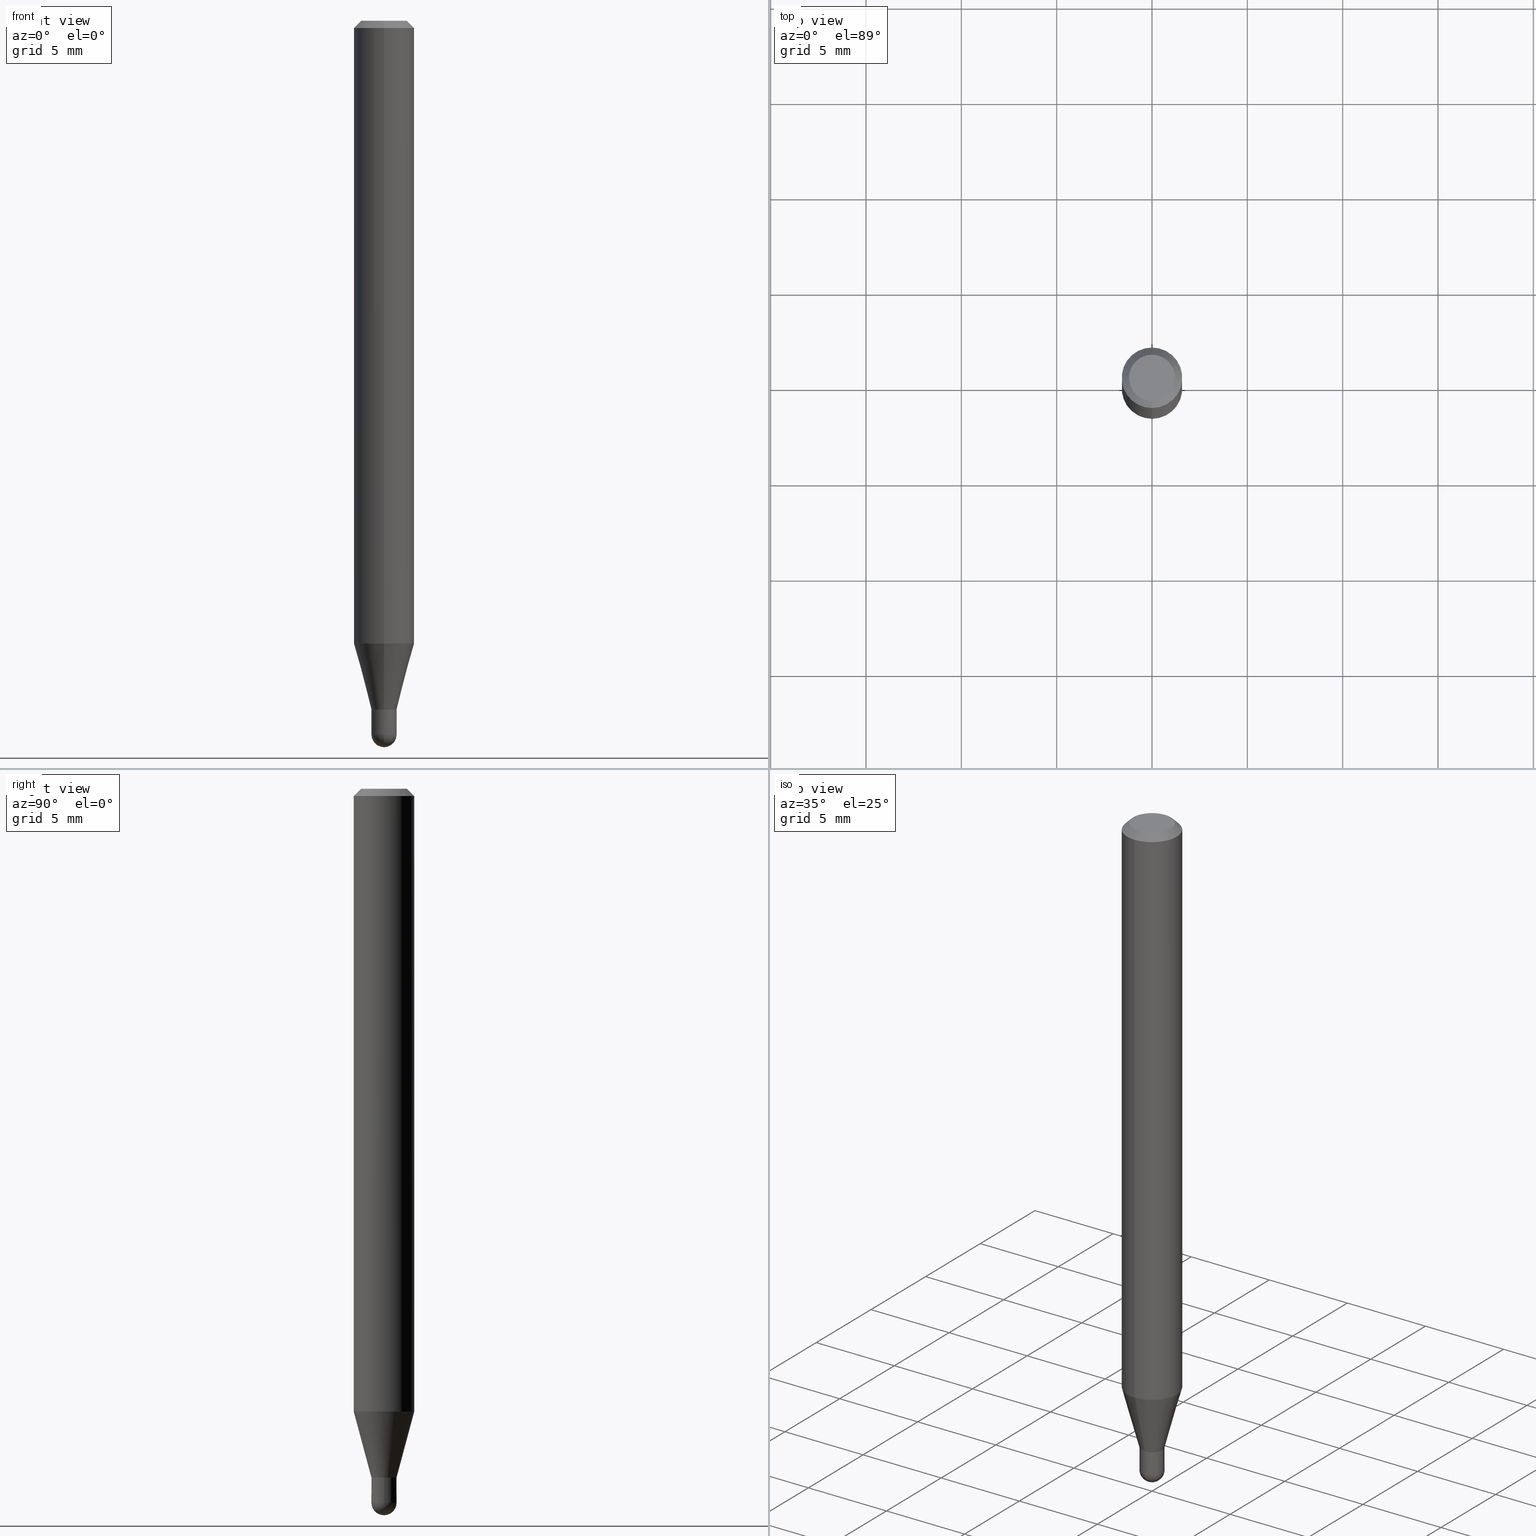
[diagram: canonical four-view strip — front | top / right | iso, engineering-drawing reading convention]
A machine part, canonical four-view strip (front | top / right | iso — engineering-drawing reading convention). The complete STEP part file that produces these views, byte-faithful:
ISO-10303-21;
HEADER;
FILE_DESCRIPTION (( 'STEP AP203' ),
    '1' );
FILE_NAME ('01409.STEP',
    '2024-03-07T20:29:47',
    ( '' ),
    ( '' ),
    'SwSTEP 2.0',
    'SolidWorks 2023',
    '' );
FILE_SCHEMA (( 'CONFIG_CONTROL_DESIGN' ));
ENDSEC;

DATA;
#1 = AXIS2_PLACEMENT_3D ( 'NONE', #109, #228, #187 ) ;
#2 = DIRECTION ( 'NONE',  ( 4.937700262164548042E-15, 0.7071067811865451302, -0.7071067811865499042 ) ) ;
#3 = CARTESIAN_POINT ( 'NONE',  ( -4.364351673553603615E-16, -0.06250000000000451028, -1.285780145523740092 ) ) ;
#4 = CARTESIAN_POINT ( 'NONE',  ( 3.477436416608549682E-29, -4.964915428312709609E-15, -1.421999999999999931 ) ) ;
#5 = LINE ( 'NONE', #329, #183 ) ;
#6 = PERSON ( 'UNSPECIFIED', 'UNSPECIFIED', 'UNSPECIFIED', ('UNSPECIFIED'), ('UNSPECIFIED'), ('UNSPECIFIED') ) ;
#7 = COORDINATED_UNIVERSAL_TIME_OFFSET ( 5, 0, .BEHIND. ) ;
#8 = DIRECTION ( 'NONE',  ( 1.000000000000000000, -6.982962677686257244E-15, 0.000000000000000000 ) ) ;
#9 = VERTEX_POINT ( 'NONE', #3 ) ;
#10 = ADVANCED_FACE ( 'NONE', ( #45 ), #307, .T. ) ;
#11 = AXIS2_PLACEMENT_3D ( 'NONE', #235, #67, #223 ) ;
#12 = EDGE_LOOP ( 'NONE', ( #434, #406, #122, #397 ) ) ;
#13 = COORDINATED_UNIVERSAL_TIME_OFFSET ( 5, 0, .BEHIND. ) ;
#14 = CARTESIAN_POINT ( 'NONE',  ( 1.815570296198776877E-16, 0.02599999999999503403, -1.421999999999999931 ) ) ;
#15 = EDGE_CURVE ( 'NONE', #252, #77, #299, .T. ) ;
#16 = CARTESIAN_POINT ( 'NONE',  ( -1.815570296198075284E-16, -0.02600000000000488032, -1.422000000000000375 ) ) ;
#17 = EDGE_CURVE ( 'NONE', #28, #436, #219, .T. ) ;
#18 = AXIS2_PLACEMENT_3D ( 'NONE', #194, #84, #412 ) ;
#19 = DIRECTION ( 'NONE',  ( -2.445468806185136597E-29, 3.491481338843145583E-15, 1.000000000000000000 ) ) ;
#20 = CC_DESIGN_PERSON_AND_ORGANIZATION_ASSIGNMENT ( #93, #214, ( #497 ) ) ;
#21 = FACE_OUTER_BOUND ( 'NONE', #393, .T. ) ;
#22 = EDGE_CURVE ( 'NONE', #441, #186, #246, .T. ) ;
#23 = CARTESIAN_POINT ( 'NONE',  ( 2.166514312515301841E-46, -3.093244288951834296E-32, -8.859352072356121388E-18 ) ) ;
#24 = AXIS2_PLACEMENT_3D ( 'NONE', #238, #371, #204 ) ;
#25 = ORIENTED_EDGE ( 'NONE', *, *, #498, .F. ) ;
#26 = DIRECTION ( 'NONE',  ( -6.982962677686265133E-15, -1.000000000000000000, 0.000000000000000000 ) ) ;
#27 = ORIENTED_EDGE ( 'NONE', *, *, #266, .T. ) ;
#28 = VERTEX_POINT ( 'NONE', #208 ) ;
#29 = DIRECTION ( 'NONE',  ( -2.445454582706433813E-29, 3.491501707674197965E-15, 1.000000000000000000 ) ) ;
#30 = ORIENTED_EDGE ( 'NONE', *, *, #216, .T. ) ;
#31 = VECTOR ( 'NONE', #29, 39.37007874015748143 ) ;
#32 = MANIFOLD_SOLID_BREP ( 'Body-Move/Copy2[1]', #277 ) ;
#33 = LENGTH_MEASURE_WITH_UNIT ( LENGTH_MEASURE( 0.02539999999999999897 ), #127 );
#34 = ORIENTED_EDGE ( 'NONE', *, *, #139, .T. ) ;
#35 = ORIENTED_EDGE ( 'NONE', *, *, #15, .F. ) ;
#36 = EDGE_CURVE ( 'NONE', #162, #475, #404, .T. ) ;
#37 = DIRECTION ( 'NONE',  ( -6.982962677686265922E-15, -1.000000000000000000, 0.000000000000000000 ) ) ;
#38 = ORIENTED_EDGE ( 'NONE', *, *, #487, .F. ) ;
#39 = AXIS2_PLACEMENT_3D ( 'NONE', #117, #481, #450 ) ;
#40 = CIRCLE ( 'NONE', #57, 0.04749999999999999362 ) ;
#41 = FACE_OUTER_BOUND ( 'NONE', #312, .T. ) ;
#42 = DIRECTION ( 'NONE',  ( -2.445454582706434094E-29, 3.491501707674197965E-15, 1.000000000000000000 ) ) ;
#43 = PLANE ( 'NONE',  #191 ) ;
#44 = ADVANCED_FACE ( 'NONE', ( #325 ), #445, .F. ) ;
#45 = FACE_OUTER_BOUND ( 'NONE', #195, .T. ) ;
#46 = MANIFOLD_SOLID_BREP ( 'Body-Move/Copy2[2]', #385 ) ;
#47 = COORDINATED_UNIVERSAL_TIME_OFFSET ( 5, 0, .BEHIND. ) ;
#48 = VERTEX_POINT ( 'NONE', #372 ) ;
#49 = AXIS2_PLACEMENT_3D ( 'NONE', #468, #189, #231 ) ;
#50 = LOCAL_TIME ( 15, 29, 47.00000000000000000, #338 ) ;
#51 = PERSON_AND_ORGANIZATION ( #6, #376 ) ;
#52 = DIRECTION ( 'NONE',  ( -6.982962677686265922E-15, -1.000000000000000000, 3.491501707674197571E-15 ) ) ;
#53 = FACE_OUTER_BOUND ( 'NONE', #149, .T. ) ;
#54 =( NAMED_UNIT ( * ) SI_UNIT ( $, .STERADIAN. ) SOLID_ANGLE_UNIT ( ) );
#55 = DIRECTION ( 'NONE',  ( -4.937700262164674260E-15, -0.7071067811865632269, 0.7071067811865319186 ) ) ;
#56 = APPROVAL_ROLE ( '' ) ;
#57 = AXIS2_PLACEMENT_3D ( 'NONE', #23, #142, #107 ) ;
#58 = SECURITY_CLASSIFICATION ( '', '', #169 ) ;
#59 = DIRECTION ( 'NONE',  ( -6.982962677686265133E-15, -1.000000000000000000, 0.000000000000000000 ) ) ;
#60 = FACE_OUTER_BOUND ( 'NONE', #74, .T. ) ;
#61 = EDGE_CURVE ( 'NONE', #48, #475, #5, .T. ) ;
#62 = VERTEX_POINT ( 'NONE', #181 ) ;
#63 = APPLICATION_CONTEXT ( 'configuration controlled 3d designs of mechanical parts and assemblies' ) ;
#64 = CARTESIAN_POINT ( 'NONE',  ( 3.664868060749905896E-29, -5.241998130781394261E-15, -1.500000000000000444 ) ) ;
#65 = AXIS2_PLACEMENT_3D ( 'NONE', #373, #247, #328 ) ;
#66 = ADVANCED_FACE ( 'NONE', ( #21 ), #462, .T. ) ;
#67 = DIRECTION ( 'NONE',  ( -2.445468806185136597E-29, 3.491481338843145583E-15, 1.000000000000000000 ) ) ;
#68 = ORIENTED_EDGE ( 'NONE', *, *, #330, .T. ) ;
#69 = ORIENTED_EDGE ( 'NONE', *, *, #211, .T. ) ;
#70 = AXIS2_PLACEMENT_3D ( 'NONE', #410, #42, #205 ) ;
#71 = CIRCLE ( 'NONE', #24, 0.04749999999999999362 ) ;
#72 = ORIENTED_EDGE ( 'NONE', *, *, #83, .F. ) ;
#73 = LINE ( 'NONE', #444, #313 ) ;
#74 = EDGE_LOOP ( 'NONE', ( #472, #479, #358, #113 ) ) ;
#75 = APPROVAL_STATUS ( 'not_yet_approved' ) ;
#76 = DIRECTION ( 'NONE',  ( -6.982962677686265922E-15, -1.000000000000000000, 3.491501707674197571E-15 ) ) ;
#77 = VERTEX_POINT ( 'NONE', #306 ) ;
#78 = PRODUCT_DEFINITION ( 'UNKNOWN', '', #497, #233 ) ;
#79 = DIRECTION ( 'NONE',  ( -2.445454582706434094E-29, 3.491501707674197965E-15, 1.000000000000000000 ) ) ;
#80 = DIRECTION ( 'NONE',  ( -2.445468806185136597E-29, 3.491481338843145583E-15, 1.000000000000000000 ) ) ;
#81 = CIRCLE ( 'NONE', #386, 0.02600000000000000228 ) ;
#82 = LOCAL_TIME ( 15, 29, 47.00000000000000000, #47 ) ;
#83 = EDGE_CURVE ( 'NONE', #188, #436, #213, .T. ) ;
#84 = DIRECTION ( 'NONE',  ( -2.445454582706434094E-29, 3.491501707674197965E-15, 1.000000000000000000 ) ) ;
#85 = EDGE_LOOP ( 'NONE', ( #197, #30, #447, #413 ) ) ;
#86 = DIRECTION ( 'NONE',  ( 1.839019923739648830E-15, 0.2588190451025317862, 0.9659258262890653146 ) ) ;
#87 = ORIENTED_EDGE ( 'NONE', *, *, #89, .F. ) ;
#88 = APPROVAL_STATUS ( 'not_yet_approved' ) ;
#89 = EDGE_CURVE ( 'NONE', #162, #441, #433, .T. ) ;
#90 = CARTESIAN_POINT ( 'NONE',  ( 0.000000000000000000, 0.000000000000000000, 0.000000000000000000 ) ) ;
#91 = AXIS2_PLACEMENT_3D ( 'NONE', #421, #140, #52 ) ;
#92 = AXIS2_PLACEMENT_3D ( 'NONE', #121, #124, #326 ) ;
#93 = PERSON_AND_ORGANIZATION ( #6, #376 ) ;
#94 = DIRECTION ( 'NONE',  ( 6.982962677686265922E-15, 1.000000000000000000, -3.491501707674197965E-15 ) ) ;
#95 = DATE_TIME_ROLE ( 'creation_date' ) ;
#96 = DIRECTION ( 'NONE',  ( 1.000000000000000000, -6.982962677686265133E-15, 4.883557194083112901E-29 ) ) ;
#97 = PERSON_AND_ORGANIZATION ( #6, #376 ) ;
#98 = DIRECTION ( 'NONE',  ( -2.445454582706434094E-29, 3.491501707674197965E-15, 1.000000000000000000 ) ) ;
#99 = ADVANCED_FACE ( 'NONE', ( #130 ), #387, .F. ) ;
#100 = CONICAL_SURFACE ( 'NONE', #455, 0.02599999999999991554, 0.2617993877991573459 ) ;
#101 = DIRECTION ( 'NONE',  ( -6.982962677686265133E-15, -1.000000000000000000, 0.000000000000000000 ) ) ;
#102 = CARTESIAN_POINT ( 'NONE',  ( 3.668181874059653067E-31, -5.237252561511299906E-17, -0.01500000000000000812 ) ) ;
#103 = EDGE_LOOP ( 'NONE', ( #512, #229, #285, #72, #370 ) ) ;
#104 = DIRECTION ( 'NONE',  ( 1.000000000000000000, -6.982962677686257244E-15, 0.000000000000000000 ) ) ;
#105 = ORIENTED_EDGE ( 'NONE', *, *, #216, .F. ) ;
#106 = CONICAL_SURFACE ( 'NONE', #407, 0.02549999999999999489, 0.7853981633974739252 ) ;
#107 = DIRECTION ( 'NONE',  ( -6.982962677686266711E-15, -1.000000000000000000, 3.491501707674198359E-15 ) ) ;
#108 = ORIENTED_EDGE ( 'NONE', *, *, #217, .T. ) ;
#109 = CARTESIAN_POINT ( 'NONE',  ( 3.604621020316892110E-29, -5.146443493454796836E-15, -1.474000000000000199 ) ) ;
#110 = EDGE_LOOP ( 'NONE', ( #431, #438 ) ) ;
#111 = APPROVAL ( #378, 'UNSPECIFIED' ) ;
#112 = FACE_OUTER_BOUND ( 'NONE', #317, .T. ) ;
#113 = ORIENTED_EDGE ( 'NONE', *, *, #253, .F. ) ;
#114 = ADVANCED_FACE ( 'NONE', ( #461 ), #423, .F. ) ;
#115 = CARTESIAN_POINT ( 'NONE',  ( 0.000000000000000000, 0.000000000000000000, 0.000000000000000000 ) ) ;
#116 = CIRCLE ( 'NONE', #184, 0.02599999999999991901 ) ;
#117 = CARTESIAN_POINT ( 'NONE',  ( 3.602397587965025364E-29, -5.149627575132580366E-15, -1.474000000000000199 ) ) ;
#118 = APPROVAL_PERSON_ORGANIZATION ( #303, #111, #56 ) ;
#119 = CYLINDRICAL_SURFACE ( 'NONE', #141, 0.06250000000000000000 ) ;
#120 = DIRECTION ( 'NONE',  ( -2.445454582706433813E-29, 3.491501707674197965E-15, 1.000000000000000000 ) ) ;
#121 = CARTESIAN_POINT ( 'NONE',  ( 3.602397587965025364E-29, -5.149627575132580366E-15, -1.474000000000000199 ) ) ;
#122 = ORIENTED_EDGE ( 'NONE', *, *, #225, .F. ) ;
#123 = ADVANCED_FACE ( 'NONE', ( #493 ), #398, .T. ) ;
#124 = DIRECTION ( 'NONE',  ( 1.000000000000000000, -6.982962677686265133E-15, 4.883557194083112901E-29 ) ) ;
#125 = VERTEX_POINT ( 'NONE', #494 ) ;
#126 = CIRCLE ( 'NONE', #11, 0.02600000000000000228 ) ;
#127 =( LENGTH_UNIT ( ) NAMED_UNIT ( * ) SI_UNIT ( $, .METRE. ) );
#128 = CARTESIAN_POINT ( 'NONE',  ( -1.815570296198423123E-16, -0.02599999999999991554, 9.077904439952885817E-17 ) ) ;
#129 = ADVANCED_FACE ( 'NONE', ( #264 ), #106, .T. ) ;
#130 = FACE_OUTER_BOUND ( 'NONE', #267, .T. ) ;
#131 = CC_DESIGN_PERSON_AND_ORGANIZATION_ASSIGNMENT ( #336, #212, ( #58 ) ) ;
#132 = COORDINATED_UNIVERSAL_TIME_OFFSET ( 5, 0, .BEHIND. ) ;
#133 = EDGE_CURVE ( 'NONE', #252, #363, #343, .T. ) ;
#134 = CARTESIAN_POINT ( 'NONE',  ( 3.602397587965025364E-29, -5.149627575132580366E-15, -1.474000000000000199 ) ) ;
#135 = CIRCLE ( 'NONE', #428, 0.02599999999999999534 ) ;
#136 = DIRECTION ( 'NONE',  ( 1.000000000000000000, -7.105427357601001070E-15, 4.926315508542082329E-29 ) ) ;
#137 = PRODUCT ( '01409', '01409', '', ( #454 ) ) ;
#138 = DIRECTION ( 'NONE',  ( -2.445454582706434094E-29, 3.491501707674197965E-15, 1.000000000000000000 ) ) ;
#139 = EDGE_CURVE ( 'NONE', #9, #415, #176, .T. ) ;
#140 = DIRECTION ( 'NONE',  ( -2.445454582706434094E-29, 3.491501707674197965E-15, 1.000000000000000000 ) ) ;
#141 = AXIS2_PLACEMENT_3D ( 'NONE', #115, #281, #76 ) ;
#142 = DIRECTION ( 'NONE',  ( -2.445454582706434094E-29, 3.491501707674197965E-15, 1.000000000000000000 ) ) ;
#143 = ADVANCED_FACE ( 'NONE', ( #60 ), #489, .T. ) ;
#144 = ORIENTED_EDGE ( 'NONE', *, *, #484, .F. ) ;
#145 = ADVANCED_FACE ( 'NONE', ( #488 ), #463, .T. ) ;
#146 = CARTESIAN_POINT ( 'NONE',  ( 4.440892098500625669E-16, 0.06250000000000000000, -2.182188567296373482E-16 ) ) ;
#147 = ORIENTED_EDGE ( 'NONE', *, *, #89, .T. ) ;
#148 = DIRECTION ( 'NONE',  ( -2.445454582706434094E-29, 3.491501707674197965E-15, 1.000000000000000000 ) ) ;
#149 = EDGE_LOOP ( 'NONE', ( #361, #87, #153, #391 ) ) ;
#150 = ORIENTED_EDGE ( 'NONE', *, *, #83, .T. ) ;
#151 = ADVANCED_FACE ( 'NONE', ( #53 ), #453, .F. ) ;
#152 = CARTESIAN_POINT ( 'NONE',  ( 1.811883976188602703E-16, 0.02549999999999503011, -1.421999999999999931 ) ) ;
#153 = ORIENTED_EDGE ( 'NONE', *, *, #36, .T. ) ;
#154 = CARTESIAN_POINT ( 'NONE',  ( 1.847411112976624507E-16, 0.02599999999999490913, -1.474000000000000199 ) ) ;
#155 = VECTOR ( 'NONE', #120, 39.37007874015748143 ) ;
#156 = CIRCLE ( 'NONE', #18, 0.02599999999999991901 ) ;
#157 = CARTESIAN_POINT ( 'NONE',  ( 3.477456642395264859E-29, -4.964886463834953365E-15, -1.421999999999999931 ) ) ;
#158 = APPLICATION_CONTEXT ( 'configuration controlled 3d designs of mechanical parts and assemblies' ) ;
#159 = LINE ( 'NONE', #405, #368 ) ;
#160 = CARTESIAN_POINT ( 'NONE',  ( 3.668181874059653067E-31, -5.237252561511299906E-17, -0.01500000000000000812 ) ) ;
#161 = LINE ( 'NONE', #279, #167 ) ;
#162 = VERTEX_POINT ( 'NONE', #16 ) ;
#163 = CARTESIAN_POINT ( 'NONE',  ( 3.604621020316892110E-29, -5.146443493454796836E-15, -1.474000000000000199 ) ) ;
#164 = ORIENTED_EDGE ( 'NONE', *, *, #380, .F. ) ;
#165 = AXIS2_PLACEMENT_3D ( 'NONE', #261, #379, #302 ) ;
#166 = AXIS2_PLACEMENT_3D ( 'NONE', #160, #209, #327 ) ;
#167 = VECTOR ( 'NONE', #482, 39.37007874015748854 ) ;
#168 = DATE_TIME_ROLE ( 'classification_date' ) ;
#169 = SECURITY_CLASSIFICATION_LEVEL ( 'unclassified' ) ;
#170 = ORIENTED_EDGE ( 'NONE', *, *, #424, .T. ) ;
#171 = APPROVAL_DATE_TIME ( #341, #111 ) ;
#172 = CARTESIAN_POINT ( 'NONE',  ( 3.477436416608549682E-29, -4.964915428312709609E-15, -1.421999999999999931 ) ) ;
#173 = CC_DESIGN_PERSON_AND_ORGANIZATION_ASSIGNMENT ( #451, #425, ( #137 ) ) ;
#174 = DIRECTION ( 'NONE',  ( 1.000000000000000000, 0.000000000000000000, 0.000000000000000000 ) ) ;
#175 = CARTESIAN_POINT ( 'NONE',  ( 3.316907271900976096E-16, 0.04749999999999999362, -1.702760071507024560E-16 ) ) ;
#176 = CIRCLE ( 'NONE', #469, 0.06250000000000000000 ) ;
#177 = CIRCLE ( 'NONE', #333, 0.02549999999999999489 ) ;
#178 = APPLICATION_PROTOCOL_DEFINITION ( 'international standard', 'config_control_design', 1994, #63 ) ;
#179 = CARTESIAN_POINT ( 'NONE',  ( 3.477456642395264859E-29, -4.964886463834953365E-15, -1.421999999999999931 ) ) ;
#180 = EDGE_CURVE ( 'NONE', #470, #193, #382, .T. ) ;
#181 = CARTESIAN_POINT ( 'NONE',  ( -0.02600000000000000228, -4.870923867347250071E-15, -1.474000000000000199 ) ) ;
#182 = DIRECTION ( 'NONE',  ( -2.445454582706434094E-29, 3.491501707674197965E-15, 1.000000000000000000 ) ) ;
#183 = VECTOR ( 'NONE', #55, 39.37007874015748143 ) ;
#184 = AXIS2_PLACEMENT_3D ( 'NONE', #314, #471, #268 ) ;
#185 = DIRECTION ( 'NONE',  ( -2.445454582706434094E-29, 3.491501707674197965E-15, 1.000000000000000000 ) ) ;
#186 = VERTEX_POINT ( 'NONE', #418 ) ;
#187 = DIRECTION ( 'NONE',  ( 1.000000000000000000, -6.982962677686257244E-15, 0.000000000000000000 ) ) ;
#188 = VERTEX_POINT ( 'NONE', #384 ) ;
#189 = DIRECTION ( 'NONE',  ( -2.445454582706434094E-29, 3.491501707674197965E-15, 1.000000000000000000 ) ) ;
#190 = ORIENTED_EDGE ( 'NONE', *, *, #180, .F. ) ;
#191 = AXIS2_PLACEMENT_3D ( 'NONE', #318, #206, #331 ) ;
#192 = EDGE_CURVE ( 'NONE', #436, #28, #135, .T. ) ;
#193 = VERTEX_POINT ( 'NONE', #304 ) ;
#194 = CARTESIAN_POINT ( 'NONE',  ( 3.476213689317196246E-29, -4.963169677458872938E-15, -1.421500000000000208 ) ) ;
#195 = EDGE_LOOP ( 'NONE', ( #190, #248, #227, #224 ) ) ;
#196 = CC_DESIGN_DATE_AND_TIME_ASSIGNMENT ( #381, #168, ( #58 ) ) ;
#197 = ORIENTED_EDGE ( 'NONE', *, *, #424, .F. ) ;
#198 = CARTESIAN_POINT ( 'NONE',  ( 4.440892098500937762E-16, 0.06249999999999548972, -1.285780145523740536 ) ) ;
#199 = AXIS2_PLACEMENT_3D ( 'NONE', #175, #491, #94 ) ;
#200 = VECTOR ( 'NONE', #287, 39.37007874015748143 ) ;
#201 = EDGE_LOOP ( 'NONE', ( #35, #510, #25, #232 ) ) ;
#202 = CC_DESIGN_APPROVAL ( #274, ( #58 ) ) ;
#203 = DATE_AND_TIME ( #286, #291 ) ;
#204 = DIRECTION ( 'NONE',  ( -6.982962677686266711E-15, -1.000000000000000000, 3.491501707674198359E-15 ) ) ;
#205 = DIRECTION ( 'NONE',  ( -6.982962677686265133E-15, -1.000000000000000000, 3.491501707674198359E-15 ) ) ;
#206 = DIRECTION ( 'NONE',  ( -2.445454582706433533E-29, 3.491501707674197965E-15, 1.000000000000000000 ) ) ;
#207 = CC_DESIGN_DATE_AND_TIME_ASSIGNMENT ( #416, #95, ( #78 ) ) ;
#208 = CARTESIAN_POINT ( 'NONE',  ( -0.02599999999999999534, -4.870923867347250071E-15, -1.421999999999999931 ) ) ;
#209 = DIRECTION ( 'NONE',  ( 2.445454582706434094E-29, -3.491501707674197965E-15, -1.000000000000000000 ) ) ;
#210 = AXIS2_PLACEMENT_3D ( 'NONE', #310, #466, #104 ) ;
#211 = EDGE_CURVE ( 'NONE', #415, #9, #399, .T. ) ;
#212 = PERSON_AND_ORGANIZATION_ROLE ( 'classification_officer' ) ;
#213 = LINE ( 'NONE', #222, #288 ) ;
#214 = PERSON_AND_ORGANIZATION_ROLE ( 'creator' ) ;
#215 = DIRECTION ( 'NONE',  ( -2.445454582706434094E-29, 3.491501707674197965E-15, 1.000000000000000000 ) ) ;
#216 = EDGE_CURVE ( 'NONE', #441, #162, #308, .T. ) ;
#217 = EDGE_CURVE ( 'NONE', #62, #77, #289, .T. ) ;
#218 = CARTESIAN_POINT ( 'NONE',  ( 3.477436416608549682E-29, -4.964915428312711187E-15, -1.422000000000000375 ) ) ;
#219 = CIRCLE ( 'NONE', #504, 0.02599999999999999534 ) ;
#220 = AXIS2_PLACEMENT_3D ( 'NONE', #414, #301, #174 ) ;
#221 = DIRECTION ( 'NONE',  ( -2.445468806185136877E-29, 3.491481338843145188E-15, 1.000000000000000000 ) ) ;
#222 = CARTESIAN_POINT ( 'NONE',  ( 0.02600000000000000228, -1.815570296198429532E-16, 1.267805961706943404E-30 ) ) ;
#223 = DIRECTION ( 'NONE',  ( 1.000000000000000000, -6.982962677686257244E-15, 0.000000000000000000 ) ) ;
#224 = ORIENTED_EDGE ( 'NONE', *, *, #323, .T. ) ;
#225 = EDGE_CURVE ( 'NONE', #475, #186, #116, .T. ) ;
#226 = VECTOR ( 'NONE', #258, 39.37007874015748143 ) ;
#227 = ORIENTED_EDGE ( 'NONE', *, *, #487, .T. ) ;
#228 = DIRECTION ( 'NONE',  ( -2.445468806185136597E-29, 3.491481338843145583E-15, 1.000000000000000000 ) ) ;
#229 = ORIENTED_EDGE ( 'NONE', *, *, #380, .T. ) ;
#230 = ADVANCED_FACE ( 'NONE', ( #311 ), #430, .T. ) ;
#231 = DIRECTION ( 'NONE',  ( -6.982962677686265922E-15, -1.000000000000000000, 4.370956789862821150E-15 ) ) ;
#232 = ORIENTED_EDGE ( 'NONE', *, *, #251, .F. ) ;
#233 = DESIGN_CONTEXT ( 'detailed design', #63, 'design' ) ;
#234 = LOCAL_TIME ( 15, 29, 47.00000000000000000, #132 ) ;
#235 = CARTESIAN_POINT ( 'NONE',  ( 3.604621020316892110E-29, -5.146443493454796836E-15, -1.474000000000000199 ) ) ;
#236 = AXIS2_PLACEMENT_3D ( 'NONE', #243, #446, #365 ) ;
#237 = EDGE_LOOP ( 'NONE', ( #147, #170, #356, #486 ) ) ;
#238 = CARTESIAN_POINT ( 'NONE',  ( 2.166514312515301841E-46, -3.093244288951834296E-32, -8.859352072356121388E-18 ) ) ;
#239 = CARTESIAN_POINT ( 'NONE',  ( 1.847411112976254235E-16, 0.02599999999999991554, -9.077904439952885817E-17 ) ) ;
#240 = CARTESIAN_POINT ( 'NONE',  ( 3.840629472727447874E-16, 0.04749999999999999362, -1.747056831868805136E-16 ) ) ;
#241 = ORIENTED_EDGE ( 'NONE', *, *, #61, .T. ) ;
#242 = PRODUCT_RELATED_PRODUCT_CATEGORY ( 'detail', '', ( #137 ) ) ;
#243 = CARTESIAN_POINT ( 'NONE',  ( 3.668181874059653067E-31, -5.237252561511299906E-17, -0.01500000000000000812 ) ) ;
#244 = AXIS2_PLACEMENT_3D ( 'NONE', #134, #96, #298 ) ;
#245 = CIRCLE ( 'NONE', #236, 0.06250000000000000000 ) ;
#246 = LINE ( 'NONE', #239, #155 ) ;
#247 = DIRECTION ( 'NONE',  ( -2.445468806185136597E-29, 3.491481338843145583E-15, 1.000000000000000000 ) ) ;
#248 = ORIENTED_EDGE ( 'NONE', *, *, #309, .F. ) ;
#249 = SHAPE_DEFINITION_REPRESENTATION ( #411, #351 ) ;
#250 = CARTESIAN_POINT ( 'NONE',  ( -3.773273898774340269E-16, -0.04749999999999999362, 1.569869790421682832E-16 ) ) ;
#251 = EDGE_CURVE ( 'NONE', #77, #188, #126, .T. ) ;
#252 = VERTEX_POINT ( 'NONE', #64 ) ;
#253 = EDGE_CURVE ( 'NONE', #363, #62, #478, .T. ) ;
#254 =( CONVERSION_BASED_UNIT ( 'INCH', #33 ) LENGTH_UNIT ( ) NAMED_UNIT ( #499 ) );
#255 = DIRECTION ( 'NONE',  ( -6.982962677686265133E-15, -1.000000000000000000, 3.491501707674198359E-15 ) ) ;
#256 = AXIS2_PLACEMENT_3D ( 'NONE', #265, #185, #502 ) ;
#257 = CALENDAR_DATE ( 2024, 7, 3 ) ;
#258 = DIRECTION ( 'NONE',  ( -4.851104656540964275E-15, -0.7071067811865500152, -0.7071067811865450192 ) ) ;
#259 = CARTESIAN_POINT ( 'NONE',  ( -4.287811248607203282E-16, -0.06250000000000005551, -0.01499999999999979128 ) ) ;
#260 = PERSON_AND_ORGANIZATION_ROLE ( 'design_supplier' ) ;
#261 = CARTESIAN_POINT ( 'NONE',  ( 3.477436416608549682E-29, -4.964915428312709609E-15, -1.421999999999999931 ) ) ;
#262 = APPROVAL_PERSON_ORGANIZATION ( #51, #395, #375 ) ;
#263 = CC_DESIGN_APPROVAL ( #395, ( #78 ) ) ;
#264 = FACE_OUTER_BOUND ( 'NONE', #12, .T. ) ;
#265 = CARTESIAN_POINT ( 'NONE',  ( 3.668181874059653067E-31, -5.237252561511299906E-17, -0.01500000000000000812 ) ) ;
#266 = EDGE_CURVE ( 'NONE', #9, #193, #437, .T. ) ;
#267 = EDGE_LOOP ( 'NONE', ( #283, #506 ) ) ;
#268 = DIRECTION ( 'NONE',  ( -6.982962677686265133E-15, -1.000000000000000000, 0.000000000000000000 ) ) ;
#269 = ORIENTED_EDGE ( 'NONE', *, *, #36, .F. ) ;
#270 = CIRCLE ( 'NONE', #256, 0.06250000000000000000 ) ;
#271 = EDGE_LOOP ( 'NONE', ( #105, #374, #272, #269 ) ) ;
#272 = ORIENTED_EDGE ( 'NONE', *, *, #484, .T. ) ;
#273 = EDGE_CURVE ( 'NONE', #319, #48, #177, .T. ) ;
#274 = APPROVAL ( #75, 'UNSPECIFIED' ) ;
#275 = DIRECTION ( 'NONE',  ( 2.445454582706434094E-29, -3.491501707674197965E-15, -1.000000000000000000 ) ) ;
#276 = ORIENTED_EDGE ( 'NONE', *, *, #251, .T. ) ;
#277 = CLOSED_SHELL ( 'NONE', ( #230, #419, #114, #143, #401 ) ) ;
#278 =( GEOMETRIC_REPRESENTATION_CONTEXT ( 3 ) GLOBAL_UNCERTAINTY_ASSIGNED_CONTEXT ( ( #439 ) ) GLOBAL_UNIT_ASSIGNED_CONTEXT ( ( #254, #420, #54 ) ) REPRESENTATION_CONTEXT ( 'NONE', 'WORKASPACE' ) );
#279 = CARTESIAN_POINT ( 'NONE',  ( -1.815570296198075284E-16, -0.02600000000000488032, -1.422000000000000375 ) ) ;
#280 = DIRECTION ( 'NONE',  ( 1.000000000000000000, -6.982962677686258822E-15, 0.000000000000000000 ) ) ;
#281 = DIRECTION ( 'NONE',  ( -2.445454582706434094E-29, 3.491501707674197965E-15, 1.000000000000000000 ) ) ;
#282 = ADVANCED_FACE ( 'NONE', ( #112 ), #359, .T. ) ;
#283 = ORIENTED_EDGE ( 'NONE', *, *, #309, .T. ) ;
#284 = LINE ( 'NONE', #369, #435 ) ;
#285 = ORIENTED_EDGE ( 'NONE', *, *, #192, .F. ) ;
#286 = CALENDAR_DATE ( 2024, 7, 3 ) ;
#287 = DIRECTION ( 'NONE',  ( 5.024295867788190974E-15, 0.7071067811865681119, 0.7071067811865270336 ) ) ;
#288 = VECTOR ( 'NONE', #221, 39.37007874015748143 ) ;
#289 = CIRCLE ( 'NONE', #210, 0.02600000000000000228 ) ;
#290 = ORIENTED_EDGE ( 'NONE', *, *, #459, .F. ) ;
#291 = LOCAL_TIME ( 15, 29, 47.00000000000000000, #7 ) ;
#292 = ADVANCED_FACE ( 'NONE', ( #350 ), #100, .T. ) ;
#293 = FACE_OUTER_BOUND ( 'NONE', #201, .T. ) ;
#294 = ORIENTED_EDGE ( 'NONE', *, *, #330, .F. ) ;
#295 = PERSON_AND_ORGANIZATION ( #6, #376 ) ;
#296 = DIRECTION ( 'NONE',  ( 2.438088387897960049E-29, -3.491481338843145188E-15, -1.000000000000000000 ) ) ;
#297 = CALENDAR_DATE ( 2024, 7, 3 ) ;
#298 = DIRECTION ( 'NONE',  ( -6.982962677686265133E-15, -1.000000000000000000, 0.000000000000000000 ) ) ;
#299 = CIRCLE ( 'NONE', #39, 0.02600000000000011330 ) ;
#300 = AXIS2_PLACEMENT_3D ( 'NONE', #4, #79, #37 ) ;
#301 = DIRECTION ( 'NONE',  ( 0.000000000000000000, 0.000000000000000000, 1.000000000000000000 ) ) ;
#302 = DIRECTION ( 'NONE',  ( -6.982962677686265922E-15, -1.000000000000000000, 0.000000000000000000 ) ) ;
#303 = PERSON_AND_ORGANIZATION ( #6, #376 ) ;
#304 = CARTESIAN_POINT ( 'NONE',  ( -4.364351673553912750E-16, -0.06250000000000005551, -0.01499999999999979128 ) ) ;
#305 = CC_DESIGN_PERSON_AND_ORGANIZATION_ASSIGNMENT ( #492, #490, ( #78 ) ) ;
#306 = CARTESIAN_POINT ( 'NONE',  ( -1.815570296198072819E-16, -0.02600000000000520298, -1.474000000000000199 ) ) ;
#307 = CONICAL_SURFACE ( 'NONE', #166, 0.06250000000000000000, 0.7853981633974483900 ) ;
#308 = CIRCLE ( 'NONE', #352, 0.02599999999999991554 ) ;
#309 = EDGE_CURVE ( 'NONE', #377, #470, #40, .T. ) ;
#310 = CARTESIAN_POINT ( 'NONE',  ( 3.604621020316892110E-29, -5.146443493454796836E-15, -1.474000000000000199 ) ) ;
#311 = FACE_OUTER_BOUND ( 'NONE', #103, .T. ) ;
#312 = EDGE_LOOP ( 'NONE', ( #467, #402 ) ) ;
#313 = VECTOR ( 'NONE', #2, 39.37007874015748143 ) ;
#314 = CARTESIAN_POINT ( 'NONE',  ( 3.476213689317196246E-29, -4.963169677458872938E-15, -1.421500000000000208 ) ) ;
#315 = ORIENTED_EDGE ( 'NONE', *, *, #349, .F. ) ;
#316 = DIRECTION ( 'NONE',  ( -6.982962677686265922E-15, -1.000000000000000000, 0.000000000000000000 ) ) ;
#317 = EDGE_LOOP ( 'NONE', ( #315, #501, #394, #38 ) ) ;
#318 = CARTESIAN_POINT ( 'NONE',  ( 3.477436416608549682E-29, -4.964915428312709609E-15, -1.421999999999999931 ) ) ;
#319 = VERTEX_POINT ( 'NONE', #465 ) ;
#320 = APPROVAL_DATE_TIME ( #203, #274 ) ;
#321 = VECTOR ( 'NONE', #366, 39.37007874015748143 ) ;
#322 = CIRCLE ( 'NONE', #300, 0.02549999999999999489 ) ;
#323 = EDGE_CURVE ( 'NONE', #125, #193, #270, .T. ) ;
#324 = DIRECTION ( 'NONE',  ( -2.445468806185136877E-29, 3.491481338843145188E-15, 1.000000000000000000 ) ) ;
#325 = FACE_OUTER_BOUND ( 'NONE', #271, .T. ) ;
#326 = DIRECTION ( 'NONE',  ( -6.982962677686265133E-15, -1.000000000000000000, 0.000000000000000000 ) ) ;
#327 = DIRECTION ( 'NONE',  ( 6.982962677686265922E-15, 1.000000000000000000, -3.483106191921935554E-15 ) ) ;
#328 = DIRECTION ( 'NONE',  ( 1.000000000000000000, -6.982962677686266711E-15, 4.876176775795935793E-29 ) ) ;
#329 = CARTESIAN_POINT ( 'NONE',  ( -1.780655482809649650E-16, -0.02550000000000495967, -1.421999999999999931 ) ) ;
#330 = EDGE_CURVE ( 'NONE', #415, #125, #354, .T. ) ;
#331 = DIRECTION ( 'NONE',  ( -6.982962677686265922E-15, -1.000000000000000000, 3.491501707674197965E-15 ) ) ;
#332 = AXIS2_PLACEMENT_3D ( 'NONE', #348, #138, #101 ) ;
#333 = AXIS2_PLACEMENT_3D ( 'NONE', #360, #182, #316 ) ;
#334 = EDGE_LOOP ( 'NONE', ( #449, #503, #241, #144 ) ) ;
#335 = CC_DESIGN_SECURITY_CLASSIFICATION ( #58, ( #497 ) ) ;
#336 = PERSON_AND_ORGANIZATION ( #6, #376 ) ;
#337 = DIRECTION ( 'NONE',  ( -6.982962677686265922E-15, -1.000000000000000000, 4.370956789862821150E-15 ) ) ;
#338 = COORDINATED_UNIVERSAL_TIME_OFFSET ( 5, 0, .BEHIND. ) ;
#339 = CARTESIAN_POINT ( 'NONE',  ( 3.602397587965025364E-29, -5.149627575132580366E-15, -1.474000000000000199 ) ) ;
#340 = CC_DESIGN_PERSON_AND_ORGANIZATION_ASSIGNMENT ( #97, #260, ( #497 ) ) ;
#341 = DATE_AND_TIME ( #297, #345 ) ;
#342 = DIRECTION ( 'NONE',  ( -6.982962677686265922E-15, -1.000000000000000000, 0.000000000000000000 ) ) ;
#343 = CIRCLE ( 'NONE', #485, 0.02600000000000011330 ) ;
#344 = VECTOR ( 'NONE', #500, 39.37007874015748143 ) ;
#345 = LOCAL_TIME ( 15, 29, 47.00000000000000000, #13 ) ;
#346 = APPROVAL_DATE_TIME ( #383, #395 ) ;
#347 = DIRECTION ( 'NONE',  ( 1.000000000000000000, -6.982962677686258822E-15, 0.000000000000000000 ) ) ;
#348 = CARTESIAN_POINT ( 'NONE',  ( 3.477436416608549682E-29, -4.964915428312711187E-15, -1.422000000000000375 ) ) ;
#349 = EDGE_CURVE ( 'NONE', #470, #377, #71, .T. ) ;
#350 = FACE_OUTER_BOUND ( 'NONE', #85, .T. ) ;
#351 = ADVANCED_BREP_SHAPE_REPRESENTATION ( '01409', ( #32, #46, #220 ), #278 ) ;
#352 = AXIS2_PLACEMENT_3D ( 'NONE', #390, #148, #357 ) ;
#353 = APPROVAL_PERSON_ORGANIZATION ( #295, #274, #367 ) ;
#354 = LINE ( 'NONE', #146, #344 ) ;
#355 = EDGE_LOOP ( 'NONE', ( #164, #108, #276, #150, #443 ) ) ;
#356 = ORIENTED_EDGE ( 'NONE', *, *, #139, .F. ) ;
#357 = DIRECTION ( 'NONE',  ( -6.982962677686265133E-15, -1.000000000000000000, 0.000000000000000000 ) ) ;
#358 = ORIENTED_EDGE ( 'NONE', *, *, #217, .F. ) ;
#359 = CONICAL_SURFACE ( 'NONE', #464, 0.06250000000000000000, 0.7853981633974483900 ) ;
#360 = CARTESIAN_POINT ( 'NONE',  ( 3.477436416608549682E-29, -4.964915428312709609E-15, -1.421999999999999931 ) ) ;
#361 = ORIENTED_EDGE ( 'NONE', *, *, #22, .F. ) ;
#362 = CARTESIAN_POINT ( 'NONE',  ( -1.815570296198081940E-16, -0.02600000000000497052, -1.421500000000000208 ) ) ;
#363 = VERTEX_POINT ( 'NONE', #154 ) ;
#364 = EDGE_CURVE ( 'NONE', #48, #319, #322, .T. ) ;
#365 = DIRECTION ( 'NONE',  ( -6.982962677686265922E-15, -1.000000000000000000, 3.483106191921935554E-15 ) ) ;
#366 = DIRECTION ( 'NONE',  ( -2.445454582706433813E-29, 3.491501707674197965E-15, 1.000000000000000000 ) ) ;
#367 = APPROVAL_ROLE ( '' ) ;
#368 = VECTOR ( 'NONE', #324, 39.37007874015748143 ) ;
#369 = CARTESIAN_POINT ( 'NONE',  ( 1.847411112976602074E-16, 0.02599999999999495076, -1.422000000000000375 ) ) ;
#370 = ORIENTED_EDGE ( 'NONE', *, *, #498, .T. ) ;
#371 = DIRECTION ( 'NONE',  ( -2.445454582706434094E-29, 3.491501707674197965E-15, 1.000000000000000000 ) ) ;
#372 = CARTESIAN_POINT ( 'NONE',  ( -1.780655482809649650E-16, -0.02550000000000495967, -1.421999999999999931 ) ) ;
#373 = CARTESIAN_POINT ( 'NONE',  ( 0.000000000000000000, 0.000000000000000000, 0.000000000000000000 ) ) ;
#374 = ORIENTED_EDGE ( 'NONE', *, *, #22, .T. ) ;
#375 = APPROVAL_ROLE ( '' ) ;
#376 = ORGANIZATION ( 'UNSPECIFIED', 'UNSPECIFIED', '' ) ;
#377 = VERTEX_POINT ( 'NONE', #240 ) ;
#378 = APPROVAL_STATUS ( 'not_yet_approved' ) ;
#379 = DIRECTION ( 'NONE',  ( -2.445454582706434094E-29, 3.491501707674197965E-15, 1.000000000000000000 ) ) ;
#380 = EDGE_CURVE ( 'NONE', #62, #28, #159, .T. ) ;
#381 = DATE_AND_TIME ( #257, #50 ) ;
#382 = LINE ( 'NONE', #259, #226 ) ;
#383 = DATE_AND_TIME ( #457, #234 ) ;
#384 = CARTESIAN_POINT ( 'NONE',  ( 0.02600000000000000228, -5.237222008264718177E-15, -1.474000000000000199 ) ) ;
#385 = CLOSED_SHELL ( 'NONE', ( #44, #129, #282, #66, #145, #292, #473, #10, #99, #505, #123, #151 ) ) ;
#386 = AXIS2_PLACEMENT_3D ( 'NONE', #163, #409, #8 ) ;
#387 = PLANE ( 'NONE',  #199 ) ;
#388 = EDGE_CURVE ( 'NONE', #162, #9, #161, .T. ) ;
#389 = DIRECTION ( 'NONE',  ( 7.105427357601000281E-15, 1.000000000000000000, 0.000000000000000000 ) ) ;
#390 = CARTESIAN_POINT ( 'NONE',  ( 3.477436416608549682E-29, -4.964915428312711187E-15, -1.422000000000000375 ) ) ;
#391 = ORIENTED_EDGE ( 'NONE', *, *, #225, .T. ) ;
#392 = DIRECTION ( 'NONE',  ( -2.445454582706434094E-29, 3.491501707674197965E-15, 1.000000000000000000 ) ) ;
#393 = EDGE_LOOP ( 'NONE', ( #34, #68, #290, #508 ) ) ;
#394 = ORIENTED_EDGE ( 'NONE', *, *, #459, .T. ) ;
#395 = APPROVAL ( #88, 'UNSPECIFIED' ) ;
#396 = CARTESIAN_POINT ( 'NONE',  ( -4.364351673553916201E-16, -0.06250000000000000000, 2.182188567296373482E-16 ) ) ;
#397 = ORIENTED_EDGE ( 'NONE', *, *, #61, .F. ) ;
#398 = CONICAL_SURFACE ( 'NONE', #165, 0.02549999999999999489, 0.7853981633974739252 ) ;
#399 = CIRCLE ( 'NONE', #49, 0.06250000000000000000 ) ;
#400 = CARTESIAN_POINT ( 'NONE',  ( 3.477436416608549682E-29, -4.964915428312711187E-15, -1.422000000000000375 ) ) ;
#401 = ADVANCED_FACE ( 'NONE', ( #442 ), #509, .T. ) ;
#402 = ORIENTED_EDGE ( 'NONE', *, *, #273, .F. ) ;
#403 = CARTESIAN_POINT ( 'NONE',  ( 0.02599999999999999534, -5.146443493454796047E-15, -1.421999999999999931 ) ) ;
#404 = LINE ( 'NONE', #128, #321 ) ;
#405 = CARTESIAN_POINT ( 'NONE',  ( -0.02600000000000000228, 1.847411112976260645E-16, -1.278923123466275736E-30 ) ) ;
#406 = ORIENTED_EDGE ( 'NONE', *, *, #452, .T. ) ;
#407 = AXIS2_PLACEMENT_3D ( 'NONE', #172, #426, #342 ) ;
#408 = AXIS2_PLACEMENT_3D ( 'NONE', #474, #432, #495 ) ;
#409 = DIRECTION ( 'NONE',  ( -2.445468806185136597E-29, 3.491481338843145583E-15, 1.000000000000000000 ) ) ;
#410 = CARTESIAN_POINT ( 'NONE',  ( 0.000000000000000000, 0.000000000000000000, 0.000000000000000000 ) ) ;
#411 = PRODUCT_DEFINITION_SHAPE ( 'NONE', 'NONE',  #78 ) ;
#412 = DIRECTION ( 'NONE',  ( -6.982962677686265133E-15, -1.000000000000000000, 0.000000000000000000 ) ) ;
#413 = ORIENTED_EDGE ( 'NONE', *, *, #211, .F. ) ;
#414 = CARTESIAN_POINT ( 'NONE',  ( 0.000000000000000000, 0.000000000000000000, 0.000000000000000000 ) ) ;
#415 = VERTEX_POINT ( 'NONE', #198 ) ;
#416 = DATE_AND_TIME ( #422, #82 ) ;
#417 = AXIS2_PLACEMENT_3D ( 'NONE', #90, #98, #255 ) ;
#418 = CARTESIAN_POINT ( 'NONE',  ( 1.847411112976595911E-16, 0.02599999999999487096, -1.421500000000000208 ) ) ;
#419 = ADVANCED_FACE ( 'NONE', ( #293 ), #480, .T. ) ;
#420 =( NAMED_UNIT ( * ) PLANE_ANGLE_UNIT ( ) SI_UNIT ( $, .RADIAN. ) );
#421 = CARTESIAN_POINT ( 'NONE',  ( 0.000000000000000000, 0.000000000000000000, 0.000000000000000000 ) ) ;
#422 = CALENDAR_DATE ( 2024, 7, 3 ) ;
#423 = PLANE ( 'NONE',  #427 ) ;
#424 = EDGE_CURVE ( 'NONE', #441, #415, #284, .T. ) ;
#425 = PERSON_AND_ORGANIZATION_ROLE ( 'design_owner' ) ;
#426 = DIRECTION ( 'NONE',  ( -2.445454582706434094E-29, 3.491501707674197965E-15, 1.000000000000000000 ) ) ;
#427 = AXIS2_PLACEMENT_3D ( 'NONE', #14, #296, #458 ) ;
#428 = AXIS2_PLACEMENT_3D ( 'NONE', #179, #19, #347 ) ;
#429 = CARTESIAN_POINT ( 'NONE',  ( 3.144316949223975890E-29, -4.489303573789717713E-15, -1.285780145523740314 ) ) ;
#430 = CYLINDRICAL_SURFACE ( 'NONE', #408, 0.02600000000000000228 ) ;
#431 = ORIENTED_EDGE ( 'NONE', *, *, #192, .T. ) ;
#432 = DIRECTION ( 'NONE',  ( -2.445468806185136597E-29, 3.491481338843145583E-15, 1.000000000000000000 ) ) ;
#433 = CIRCLE ( 'NONE', #332, 0.02599999999999991554 ) ;
#434 = ORIENTED_EDGE ( 'NONE', *, *, #364, .T. ) ;
#435 = VECTOR ( 'NONE', #86, 39.37007874015748143 ) ;
#436 = VERTEX_POINT ( 'NONE', #403 ) ;
#437 = LINE ( 'NONE', #396, #31 ) ;
#438 = ORIENTED_EDGE ( 'NONE', *, *, #17, .T. ) ;
#439 = UNCERTAINTY_MEASURE_WITH_UNIT (LENGTH_MEASURE( 1.000000000000000082E-05 ), #254, 'distance_accuracy_value', 'NONE');
#440 = DIRECTION ( 'NONE',  ( 6.982962677686265922E-15, 1.000000000000000000, -3.483106191921935554E-15 ) ) ;
#441 = VERTEX_POINT ( 'NONE', #476 ) ;
#442 = FACE_OUTER_BOUND ( 'NONE', #355, .T. ) ;
#443 = ORIENTED_EDGE ( 'NONE', *, *, #17, .F. ) ;
#444 = CARTESIAN_POINT ( 'NONE',  ( 4.364351673553919652E-16, 0.06249999999999995143, -0.01500000000000022669 ) ) ;
#445 = CYLINDRICAL_SURFACE ( 'NONE', #70, 0.02599999999999991554 ) ;
#446 = DIRECTION ( 'NONE',  ( -2.445454582706434094E-29, 3.491501707674197965E-15, 1.000000000000000000 ) ) ;
#447 = ORIENTED_EDGE ( 'NONE', *, *, #388, .T. ) ;
#448 = FACE_OUTER_BOUND ( 'NONE', #477, .T. ) ;
#449 = ORIENTED_EDGE ( 'NONE', *, *, #452, .F. ) ;
#450 = DIRECTION ( 'NONE',  ( -6.982962677686265133E-15, -1.000000000000000000, 0.000000000000000000 ) ) ;
#451 = PERSON_AND_ORGANIZATION ( #6, #376 ) ;
#452 = EDGE_CURVE ( 'NONE', #319, #186, #511, .T. ) ;
#453 = CYLINDRICAL_SURFACE ( 'NONE', #417, 0.02599999999999991554 ) ;
#454 = MECHANICAL_CONTEXT ( 'NONE', #158, 'mechanical' ) ;
#455 = AXIS2_PLACEMENT_3D ( 'NONE', #400, #392, #26 ) ;
#456 = DIRECTION ( 'NONE',  ( -2.445454582706434094E-29, 3.491501707674197965E-15, 1.000000000000000000 ) ) ;
#457 = CALENDAR_DATE ( 2024, 7, 3 ) ;
#458 = DIRECTION ( 'NONE',  ( -1.000000000000000000, 6.982962677686265922E-15, -4.876176775795935793E-29 ) ) ;
#459 = EDGE_CURVE ( 'NONE', #193, #125, #245, .T. ) ;
#460 = APPLICATION_PROTOCOL_DEFINITION ( 'international standard', 'config_control_design', 1994, #158 ) ;
#461 = FACE_OUTER_BOUND ( 'NONE', #110, .T. ) ;
#462 = CYLINDRICAL_SURFACE ( 'NONE', #91, 0.06250000000000000000 ) ;
#463 = CONICAL_SURFACE ( 'NONE', #496, 0.02599999999999991554, 0.2617993877991573459 ) ;
#464 = AXIS2_PLACEMENT_3D ( 'NONE', #102, #275, #440 ) ;
#465 = CARTESIAN_POINT ( 'NONE',  ( 1.829647544582602512E-16, 0.02549999999999503011, -1.421999999999999931 ) ) ;
#466 = DIRECTION ( 'NONE',  ( -2.445468806185136597E-29, 3.491481338843145583E-15, 1.000000000000000000 ) ) ;
#467 = ORIENTED_EDGE ( 'NONE', *, *, #364, .F. ) ;
#468 = CARTESIAN_POINT ( 'NONE',  ( 3.144316949223975890E-29, -4.489303573789717713E-15, -1.285780145523740314 ) ) ;
#469 = AXIS2_PLACEMENT_3D ( 'NONE', #429, #215, #337 ) ;
#470 = VERTEX_POINT ( 'NONE', #250 ) ;
#471 = DIRECTION ( 'NONE',  ( -2.445454582706434094E-29, 3.491501707674197965E-15, 1.000000000000000000 ) ) ;
#472 = ORIENTED_EDGE ( 'NONE', *, *, #133, .F. ) ;
#473 = ADVANCED_FACE ( 'NONE', ( #448 ), #119, .T. ) ;
#474 = CARTESIAN_POINT ( 'NONE',  ( 0.000000000000000000, 0.000000000000000000, 0.000000000000000000 ) ) ;
#475 = VERTEX_POINT ( 'NONE', #362 ) ;
#476 = CARTESIAN_POINT ( 'NONE',  ( 3.144151605738772013E-16, 0.02599999999999495076, -1.422000000000000375 ) ) ;
#477 = EDGE_LOOP ( 'NONE', ( #294, #69, #27, #483 ) ) ;
#478 = CIRCLE ( 'NONE', #1, 0.02600000000000000228 ) ;
#479 = ORIENTED_EDGE ( 'NONE', *, *, #15, .T. ) ;
#480 = SPHERICAL_SURFACE ( 'NONE', #92, 0.02600000000000011330 ) ;
#481 = DIRECTION ( 'NONE',  ( -1.000000000000000000, 6.982962677686265922E-15, -4.883557194083112340E-29 ) ) ;
#482 = DIRECTION ( 'NONE',  ( -1.807323732225377865E-15, -0.2588190451025250138, 0.9659258262890670910 ) ) ;
#483 = ORIENTED_EDGE ( 'NONE', *, *, #323, .F. ) ;
#484 = EDGE_CURVE ( 'NONE', #186, #475, #156, .T. ) ;
#485 = AXIS2_PLACEMENT_3D ( 'NONE', #339, #136, #389 ) ;
#486 = ORIENTED_EDGE ( 'NONE', *, *, #388, .F. ) ;
#487 = EDGE_CURVE ( 'NONE', #377, #125, #73, .T. ) ;
#488 = FACE_OUTER_BOUND ( 'NONE', #237, .T. ) ;
#489 = SPHERICAL_SURFACE ( 'NONE', #244, 0.02600000000000011330 ) ;
#490 = PERSON_AND_ORGANIZATION_ROLE ( 'creator' ) ;
#491 = DIRECTION ( 'NONE',  ( 2.445454582706433533E-29, -3.491501707674197965E-15, -1.000000000000000000 ) ) ;
#492 = PERSON_AND_ORGANIZATION ( #6, #376 ) ;
#493 = FACE_OUTER_BOUND ( 'NONE', #334, .T. ) ;
#494 = CARTESIAN_POINT ( 'NONE',  ( 4.440892098500941706E-16, 0.06249999999999995143, -0.01500000000000022669 ) ) ;
#495 = DIRECTION ( 'NONE',  ( 1.000000000000000000, -6.982962677686266711E-15, 4.876176775795935793E-29 ) ) ;
#496 = AXIS2_PLACEMENT_3D ( 'NONE', #218, #456, #59 ) ;
#497 = PRODUCT_DEFINITION_FORMATION_WITH_SPECIFIED_SOURCE ( 'ANY', '', #137, .NOT_KNOWN. ) ;
#498 = EDGE_CURVE ( 'NONE', #188, #363, #81, .T. ) ;
#499 = DIMENSIONAL_EXPONENTS ( 1.000000000000000000, 0.000000000000000000, 0.000000000000000000, 0.000000000000000000, 0.000000000000000000, 0.000000000000000000, 0.000000000000000000 ) ;
#500 = DIRECTION ( 'NONE',  ( -2.445454582706433813E-29, 3.491501707674197965E-15, 1.000000000000000000 ) ) ;
#501 = ORIENTED_EDGE ( 'NONE', *, *, #180, .T. ) ;
#502 = DIRECTION ( 'NONE',  ( -6.982962677686265922E-15, -1.000000000000000000, 3.483106191921935554E-15 ) ) ;
#503 = ORIENTED_EDGE ( 'NONE', *, *, #273, .T. ) ;
#504 = AXIS2_PLACEMENT_3D ( 'NONE', #157, #80, #280 ) ;
#505 = ADVANCED_FACE ( 'NONE', ( #41 ), #43, .F. ) ;
#506 = ORIENTED_EDGE ( 'NONE', *, *, #349, .T. ) ;
#507 = CC_DESIGN_APPROVAL ( #111, ( #497 ) ) ;
#508 = ORIENTED_EDGE ( 'NONE', *, *, #266, .F. ) ;
#509 = CYLINDRICAL_SURFACE ( 'NONE', #65, 0.02600000000000000228 ) ;
#510 = ORIENTED_EDGE ( 'NONE', *, *, #133, .T. ) ;
#511 = LINE ( 'NONE', #152, #200 ) ;
#512 = ORIENTED_EDGE ( 'NONE', *, *, #253, .T. ) ;
ENDSEC;
END-ISO-10303-21;
